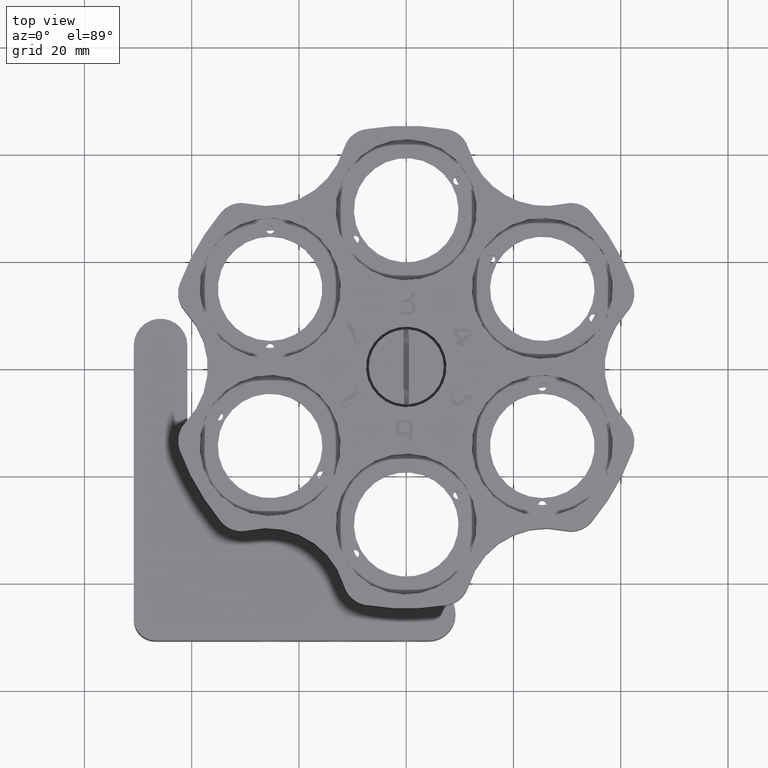
[diagram: clean part render]
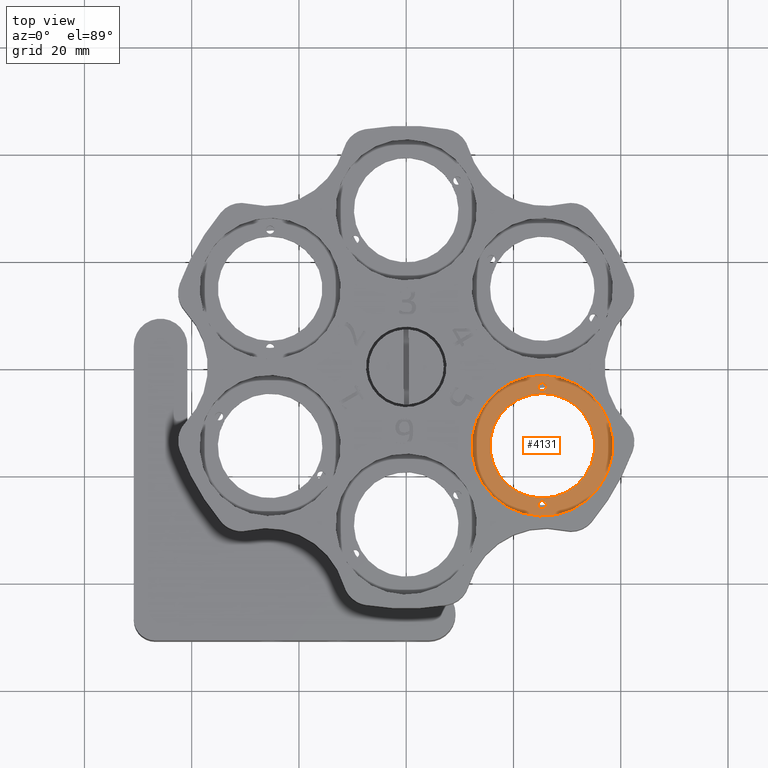
[diagram: same view with one face highlighted and labeled with its STEP entity id]
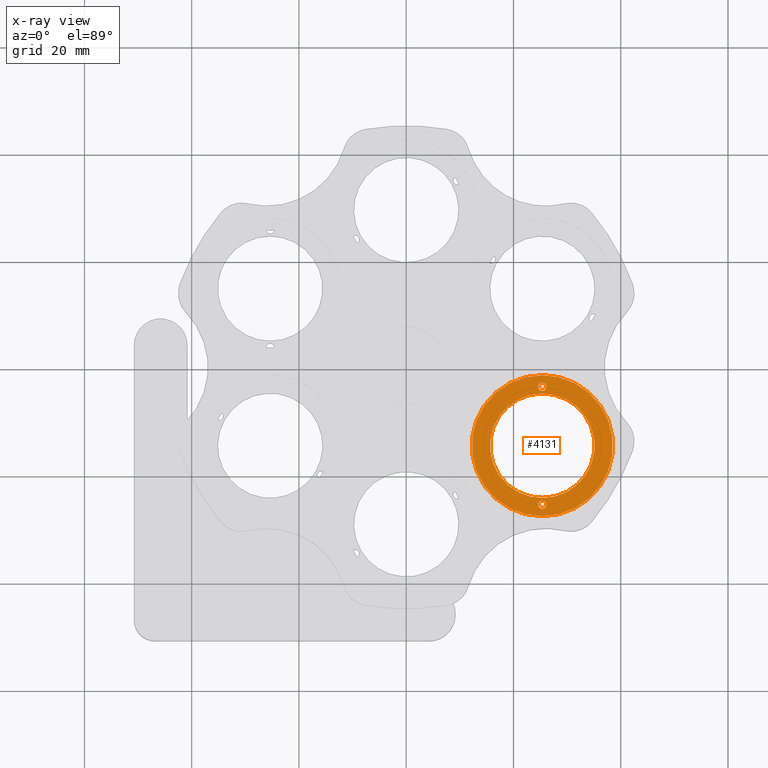
[diagram: x-ray of the same camera — body ghosted, the highlighted face saturated]
A machine part, top view. The second image highlights one B-rep face of the part: STEP entity #4131.
The next image is the same camera in x-ray: the body ghosted, the highlighted face saturated — about 0% of this face is hidden behind the body in this view.
In plain terms, the highlighted planar face has unit normal (-0, -0, 1).
Its self-contained STEP definition (entity closure, byte-faithful):
#45 = CARTESIAN_POINT ( 'NONE',  ( 25.37454433088443700, -25.64999999999937300, 8.599999999999997900 ) ) ;
#127 = EDGE_LOOP ( 'NONE', ( #6131, #12443 ) ) ;
#174 = DIRECTION ( 'NONE',  ( 1.402537042669210200E-031, -1.000000000000000000, -2.711709361697225500E-031 ) ) ;
#231 = CIRCLE ( 'NONE', #9182, 0.7500000000000015500 ) ;
#1045 = FACE_OUTER_BOUND ( 'NONE', #12756, .T. ) ;
#1069 = EDGE_CURVE ( 'NONE', #4254, #14577, #1394, .T. ) ;
#1247 = FACE_BOUND ( 'NONE', #127, .T. ) ;
#1394 = CIRCLE ( 'NONE', #8894, 0.7500000000000006700 ) ;
#1428 = DIRECTION ( 'NONE',  ( -7.279171581322959600E-032, 6.162975822039154700E-032, 1.000000000000000000 ) ) ;
#1479 = DIRECTION ( 'NONE',  ( -7.279171581322959600E-032, -2.711709361697225500E-031, 1.000000000000000000 ) ) ;
#2266 = CARTESIAN_POINT ( 'NONE',  ( 25.37454433088442200, -3.649999999999356900, 8.600000000000019200 ) ) ;
#2506 = CARTESIAN_POINT ( 'NONE',  ( 25.37454433088442200, -4.899999999999356400, 8.600000000000008500 ) ) ;
#2687 = PLANE ( 'NONE',  #9659 ) ;
#2791 = DIRECTION ( 'NONE',  ( -7.279171581322959600E-032, 6.162975822039154700E-032, 1.000000000000000000 ) ) ;
#2837 = DIRECTION ( 'NONE',  ( 0.0000000000000000000, -1.000000000000000000, 0.0000000000000000000 ) ) ;
#2936 = VERTEX_POINT ( 'NONE', #10975 ) ;
#3059 = CIRCLE ( 'NONE', #9791, 0.7500000000000006700 ) ;
#3367 = ORIENTED_EDGE ( 'NONE', *, *, #6130, .F. ) ;
#3493 = DIRECTION ( 'NONE',  ( -7.279171581322959600E-032, 6.162975822039154700E-032, 1.000000000000000000 ) ) ;
#3975 = CARTESIAN_POINT ( 'NONE',  ( 25.37454433088442600, -2.899999999999356400, 8.600000000000019200 ) ) ;
#4131 = ADVANCED_FACE ( 'NONE', ( #1247, #7269, #1045, #13499 ), #2687, .T. ) ;
#4254 = VERTEX_POINT ( 'NONE', #5173 ) ;
#4320 = CIRCLE ( 'NONE', #10854, 9.750000000000016000 ) ;
#4475 = AXIS2_PLACEMENT_3D ( 'NONE', #4997, #14648, #5101 ) ;
#4732 = VERTEX_POINT ( 'NONE', #9745 ) ;
#4989 = AXIS2_PLACEMENT_3D ( 'NONE', #8152, #3493, #10715 ) ;
#4997 = CARTESIAN_POINT ( 'NONE',  ( 25.37454433088442200, -14.64999999999935700, 8.600000000000008500 ) ) ;
#5039 = DIRECTION ( 'NONE',  ( 0.0000000000000000000, 1.000000000000000000, 0.0000000000000000000 ) ) ;
#5101 = DIRECTION ( 'NONE',  ( 0.0000000000000000000, -1.000000000000000000, 0.0000000000000000000 ) ) ;
#5173 = CARTESIAN_POINT ( 'NONE',  ( 25.37454433088444000, -24.89999999999937300, 8.599999999999997900 ) ) ;
#5208 = DIRECTION ( 'NONE',  ( -7.279171581322959600E-032, 6.162975822039154700E-032, 1.000000000000000000 ) ) ;
#5219 = DIRECTION ( 'NONE',  ( 0.0000000000000000000, 1.000000000000000000, 0.0000000000000000000 ) ) ;
#5666 = EDGE_LOOP ( 'NONE', ( #14620, #6841 ) ) ;
#6130 = EDGE_CURVE ( 'NONE', #2936, #12170, #15245, .T. ) ;
#6131 = ORIENTED_EDGE ( 'NONE', *, *, #11305, .F. ) ;
#6175 = CARTESIAN_POINT ( 'NONE',  ( 25.37454433088442200, -24.39999999999935900, 8.600000000000008500 ) ) ;
#6230 = DIRECTION ( 'NONE',  ( 0.0000000000000000000, -1.000000000000000000, 0.0000000000000000000 ) ) ;
#6424 = CARTESIAN_POINT ( 'NONE',  ( 25.37454433088442200, -14.64999999999935700, 8.600000000000008500 ) ) ;
#6438 = ORIENTED_EDGE ( 'NONE', *, *, #8616, .T. ) ;
#6482 = EDGE_CURVE ( 'NONE', #12170, #2936, #231, .T. ) ;
#6841 = ORIENTED_EDGE ( 'NONE', *, *, #9193, .F. ) ;
#7269 = FACE_BOUND ( 'NONE', #7745, .T. ) ;
#7592 = CARTESIAN_POINT ( 'NONE',  ( 25.37454433088443700, -25.64999999999937300, 8.599999999999997900 ) ) ;
#7743 = VERTEX_POINT ( 'NONE', #6175 ) ;
#7745 = EDGE_LOOP ( 'NONE', ( #3367, #15198 ) ) ;
#7773 = DIRECTION ( 'NONE',  ( -7.279171581322959600E-032, 6.162975822039154700E-032, 1.000000000000000000 ) ) ;
#8074 = DIRECTION ( 'NONE',  ( 0.0000000000000000000, -1.000000000000000000, 0.0000000000000000000 ) ) ;
#8152 = CARTESIAN_POINT ( 'NONE',  ( 25.37454433088442200, -14.64999999999935700, 8.600000000000008500 ) ) ;
#8203 = EDGE_CURVE ( 'NONE', #10834, #4732, #14734, .T. ) ;
#8549 = ORIENTED_EDGE ( 'NONE', *, *, #8203, .T. ) ;
#8616 = EDGE_CURVE ( 'NONE', #4732, #10834, #11538, .T. ) ;
#8894 = AXIS2_PLACEMENT_3D ( 'NONE', #45, #13269, #5039 ) ;
#9033 = CARTESIAN_POINT ( 'NONE',  ( 25.37454433088442200, -3.649999999999356900, 8.600000000000019200 ) ) ;
#9182 = AXIS2_PLACEMENT_3D ( 'NONE', #2266, #14241, #8074 ) ;
#9193 = EDGE_CURVE ( 'NONE', #7743, #12410, #10540, .T. ) ;
#9659 = AXIS2_PLACEMENT_3D ( 'NONE', #9806, #1479, #174 ) ;
#9745 = CARTESIAN_POINT ( 'NONE',  ( 25.37454433088442200, -27.79999999999936100, 8.600000000000008500 ) ) ;
#9791 = AXIS2_PLACEMENT_3D ( 'NONE', #7592, #2791, #5219 ) ;
#9806 = CARTESIAN_POINT ( 'NONE',  ( 25.37454433088442200, -14.64999999999935700, 8.600000000000008500 ) ) ;
#10540 = CIRCLE ( 'NONE', #11583, 9.750000000000016000 ) ;
#10715 = DIRECTION ( 'NONE',  ( 0.0000000000000000000, -1.000000000000000000, 0.0000000000000000000 ) ) ;
#10800 = CARTESIAN_POINT ( 'NONE',  ( 25.37454433088444000, -26.39999999999937700, 8.599999999999997900 ) ) ;
#10834 = VERTEX_POINT ( 'NONE', #12778 ) ;
#10854 = AXIS2_PLACEMENT_3D ( 'NONE', #6424, #5208, #2837 ) ;
#10975 = CARTESIAN_POINT ( 'NONE',  ( 25.37454433088442200, -4.399999999999358200, 8.600000000000019200 ) ) ;
#11305 = EDGE_CURVE ( 'NONE', #14577, #4254, #3059, .T. ) ;
#11538 = CIRCLE ( 'NONE', #4989, 13.15000000000001600 ) ;
#11583 = AXIS2_PLACEMENT_3D ( 'NONE', #13294, #1428, #6230 ) ;
#12170 = VERTEX_POINT ( 'NONE', #3975 ) ;
#12410 = VERTEX_POINT ( 'NONE', #2506 ) ;
#12443 = ORIENTED_EDGE ( 'NONE', *, *, #1069, .F. ) ;
#12756 = EDGE_LOOP ( 'NONE', ( #8549, #6438 ) ) ;
#12778 = CARTESIAN_POINT ( 'NONE',  ( 25.37454433088442200, -1.499999999999357800, 8.600000000000008500 ) ) ;
#13269 = DIRECTION ( 'NONE',  ( -7.279171581322959600E-032, 6.162975822039154700E-032, 1.000000000000000000 ) ) ;
#13294 = CARTESIAN_POINT ( 'NONE',  ( 25.37454433088442200, -14.64999999999935700, 8.600000000000008500 ) ) ;
#13499 = FACE_BOUND ( 'NONE', #5666, .T. ) ;
#13840 = DIRECTION ( 'NONE',  ( 0.0000000000000000000, -1.000000000000000000, 0.0000000000000000000 ) ) ;
#13963 = EDGE_CURVE ( 'NONE', #12410, #7743, #4320, .T. ) ;
#14045 = AXIS2_PLACEMENT_3D ( 'NONE', #9033, #7773, #13840 ) ;
#14241 = DIRECTION ( 'NONE',  ( -7.279171581322959600E-032, 6.162975822039154700E-032, 1.000000000000000000 ) ) ;
#14577 = VERTEX_POINT ( 'NONE', #10800 ) ;
#14620 = ORIENTED_EDGE ( 'NONE', *, *, #13963, .F. ) ;
#14648 = DIRECTION ( 'NONE',  ( -7.279171581322959600E-032, 6.162975822039154700E-032, 1.000000000000000000 ) ) ;
#14734 = CIRCLE ( 'NONE', #4475, 13.15000000000001600 ) ;
#15198 = ORIENTED_EDGE ( 'NONE', *, *, #6482, .F. ) ;
#15245 = CIRCLE ( 'NONE', #14045, 0.7500000000000015500 ) ;